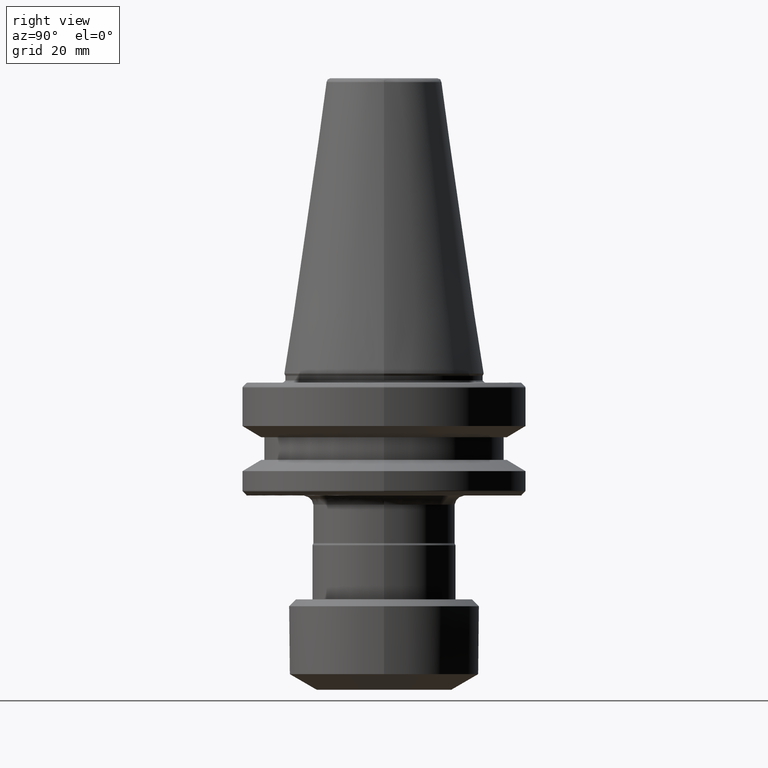
[diagram: clean part render]
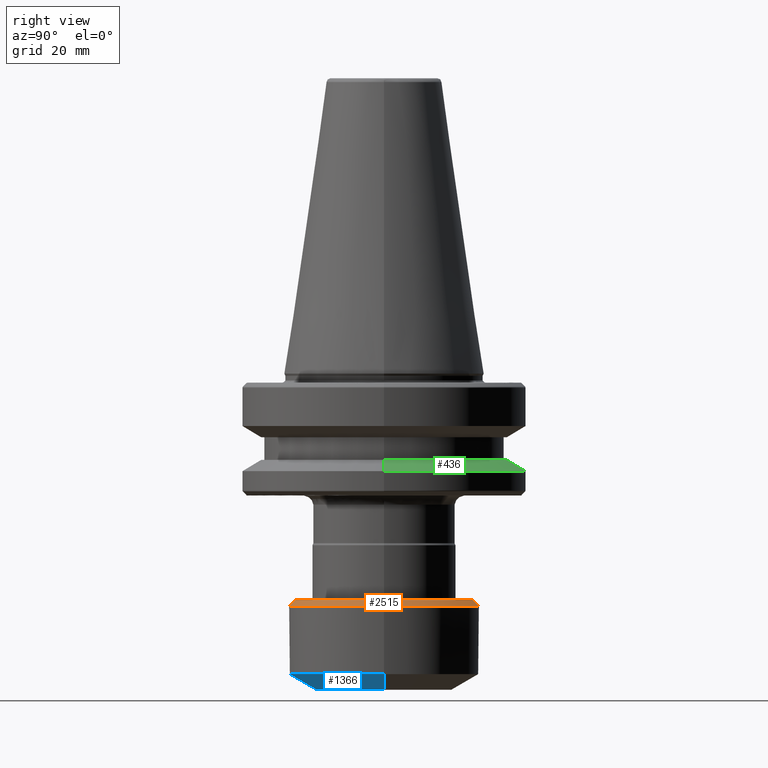
[diagram: same view with three faces highlighted in distinct colors, each labeled with its STEP entity id]
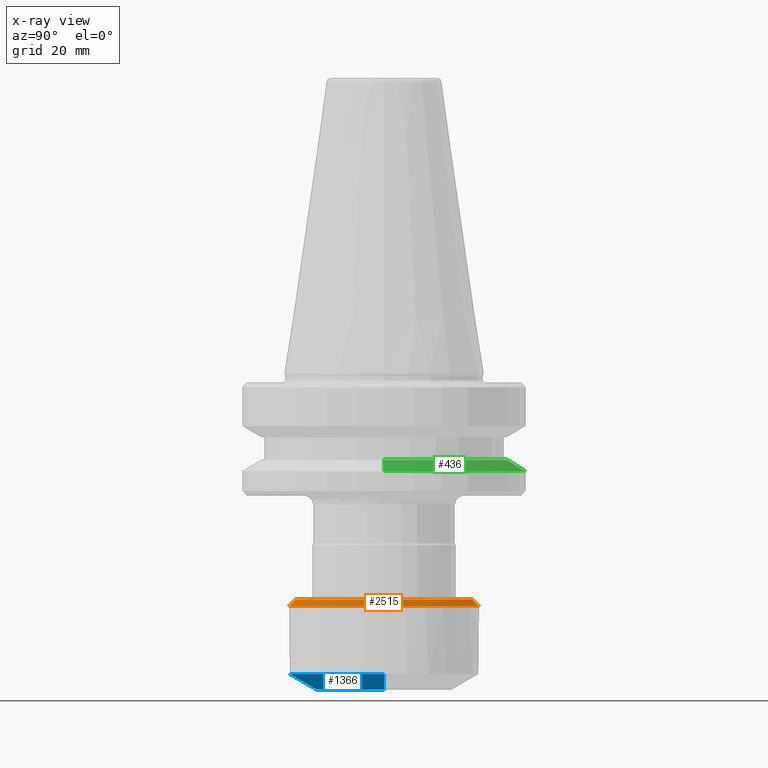
[diagram: x-ray of the same camera — body ghosted, the three highlighted faces saturated]
A machine part, right view with three faces highlighted in distinct colors.
The next image is the same camera in x-ray (body ghosted, the three faces saturated) — at least one of them is partly hidden behind the body in this view.
Their STEP definitions:

[orange] entity #2515 — the highlighted conical surface has half-angle 45 deg.
#16 = CONICAL_SURFACE ( 'NONE', #1142, 19.50000000000000400, 0.7853981633974488300 ) ;
#37 = EDGE_CURVE ( 'NONE', #2685, #1561, #1687, .T. ) ;
#41 = FACE_OUTER_BOUND ( 'NONE', #826, .T. ) ;
#42 = CARTESIAN_POINT ( 'NONE',  ( 61.73341380625030400, 81.23534176582239800, 15.56793828204414100 ) ) ;
#68 = CIRCLE ( 'NONE', #154, 20.99999999999998900 ) ;
#142 = DIRECTION ( 'NONE',  ( 0.0000000000000000000, 0.0000000000000000000, 1.000000000000000000 ) ) ;
#154 = AXIS2_PLACEMENT_3D ( 'NONE', #1507, #142, #1720 ) ;
#171 = CARTESIAN_POINT ( 'NONE',  ( 61.73341380625030400, 81.23534176582239800, 17.06793828204413900 ) ) ;
#197 = DIRECTION ( 'NONE',  ( 0.0000000000000000000, 0.7071067811865479100, -0.7071067811865471300 ) ) ;
#291 = VECTOR ( 'NONE', #197, 1000.000000000000000 ) ;
#296 = LINE ( 'NONE', #1571, #291 ) ;
#334 = LINE ( 'NONE', #1700, #360 ) ;
#350 = AXIS2_PLACEMENT_3D ( 'NONE', #807, #560, #635 ) ;
#358 = DIRECTION ( 'NONE',  ( 8.659560562354937800E-017, -0.7071067811865479100, -0.7071067811865471300 ) ) ;
#360 = VECTOR ( 'NONE', #358, 1000.000000000000000 ) ;
#385 = EDGE_CURVE ( 'NONE', #776, #1526, #698, .T. ) ;
#560 = DIRECTION ( 'NONE',  ( -0.0000000000000000000, 4.448008912761044100E-017, 1.000000000000000000 ) ) ;
#635 = DIRECTION ( 'NONE',  ( 0.0000000000000000000, 1.000000000000000000, 0.0000000000000000000 ) ) ;
#698 = CIRCLE ( 'NONE', #350, 19.49999999999998900 ) ;
#776 = VERTEX_POINT ( 'NONE', #1536 ) ;
#803 = VERTEX_POINT ( 'NONE', #1148 ) ;
#807 = CARTESIAN_POINT ( 'NONE',  ( 61.73341380625030400, 81.23534176582239800, 17.06793828204414600 ) ) ;
#826 = EDGE_LOOP ( 'NONE', ( #2488, #929, #2050, #2421, #1028 ) ) ;
#929 = ORIENTED_EDGE ( 'NONE', *, *, #1764, .T. ) ;
#1028 = ORIENTED_EDGE ( 'NONE', *, *, #1857, .F. ) ;
#1142 = AXIS2_PLACEMENT_3D ( 'NONE', #171, #1542, #2469 ) ;
#1148 = CARTESIAN_POINT ( 'NONE',  ( 61.73341380625030400, 60.23534176582239000, 15.56793828204414100 ) ) ;
#1370 = CARTESIAN_POINT ( 'NONE',  ( 61.73341380625030400, 100.7353417658223800, 17.06793828204414600 ) ) ;
#1507 = CARTESIAN_POINT ( 'NONE',  ( 61.73341380625030400, 81.23534176582239800, 15.56793828204414100 ) ) ;
#1526 = VERTEX_POINT ( 'NONE', #1370 ) ;
#1536 = CARTESIAN_POINT ( 'NONE',  ( 61.73341380625030400, 61.73534176582240500, 17.06793828204414600 ) ) ;
#1542 = DIRECTION ( 'NONE',  ( 0.0000000000000000000, -4.448008912761044100E-017, -1.000000000000000000 ) ) ;
#1561 = VERTEX_POINT ( 'NONE', #1646 ) ;
#1571 = CARTESIAN_POINT ( 'NONE',  ( 61.73341380625030400, 100.7353417658224000, 17.06793828204413900 ) ) ;
#1583 = AXIS2_PLACEMENT_3D ( 'NONE', #42, #2408, #1825 ) ;
#1646 = CARTESIAN_POINT ( 'NONE',  ( 61.73341380625030400, 102.2353417658224000, 15.56793828204414100 ) ) ;
#1687 = CIRCLE ( 'NONE', #1583, 20.99999999999998900 ) ;
#1700 = CARTESIAN_POINT ( 'NONE',  ( 61.73341380625030400, 61.73534176582239000, 17.06793828204413900 ) ) ;
#1720 = DIRECTION ( 'NONE',  ( 1.000000000000000000, 0.0000000000000000000, 0.0000000000000000000 ) ) ;
#1764 = EDGE_CURVE ( 'NONE', #776, #803, #334, .T. ) ;
#1779 = CARTESIAN_POINT ( 'NONE',  ( 82.73341380625031100, 81.23534176582239800, 15.56793828204414100 ) ) ;
#1825 = DIRECTION ( 'NONE',  ( 1.000000000000000000, 0.0000000000000000000, 0.0000000000000000000 ) ) ;
#1857 = EDGE_CURVE ( 'NONE', #1526, #1561, #296, .T. ) ;
#2050 = ORIENTED_EDGE ( 'NONE', *, *, #2491, .T. ) ;
#2408 = DIRECTION ( 'NONE',  ( 0.0000000000000000000, 0.0000000000000000000, 1.000000000000000000 ) ) ;
#2421 = ORIENTED_EDGE ( 'NONE', *, *, #37, .T. ) ;
#2469 = DIRECTION ( 'NONE',  ( 0.0000000000000000000, 1.000000000000000000, 0.0000000000000000000 ) ) ;
#2488 = ORIENTED_EDGE ( 'NONE', *, *, #385, .F. ) ;
#2491 = EDGE_CURVE ( 'NONE', #803, #2685, #68, .T. ) ;
#2515 = ADVANCED_FACE ( 'NONE', ( #41 ), #16, .T. ) ;
#2685 = VERTEX_POINT ( 'NONE', #1779 ) ;

[blue] entity #1366 — the highlighted conical surface has half-angle 60 deg.
#82 = DIRECTION ( 'NONE',  ( 5.782411586589358600E-017, -0.0000000000000000000, -1.000000000000000000 ) ) ;
#120 = VECTOR ( 'NONE', #2267, 1000.000000000000000 ) ;
#152 = LINE ( 'NONE', #859, #120 ) ;
#189 = AXIS2_PLACEMENT_3D ( 'NONE', #531, #82, #2449 ) ;
#286 = CARTESIAN_POINT ( 'NONE',  ( 61.73341380625030400, 81.23534176582239800, -2.932061717955860100 ) ) ;
#331 = EDGE_CURVE ( 'NONE', #2090, #2509, #733, .T. ) ;
#394 = AXIS2_PLACEMENT_3D ( 'NONE', #286, #2690, #2624 ) ;
#447 = CONICAL_SURFACE ( 'NONE', #394, 15.00000000000000000, 1.047197551233155100 ) ;
#450 = FACE_OUTER_BOUND ( 'NONE', #1199, .T. ) ;
#499 = CIRCLE ( 'NONE', #2288, 20.99999999999998900 ) ;
#502 = LINE ( 'NONE', #1380, #513 ) ;
#513 = VECTOR ( 'NONE', #1374, 999.9999999999998900 ) ;
#531 = CARTESIAN_POINT ( 'NONE',  ( 61.73341380625030400, 81.23534176582239800, -2.932061717955869000 ) ) ;
#733 = CIRCLE ( 'NONE', #189, 14.99999999999998600 ) ;
#859 = CARTESIAN_POINT ( 'NONE',  ( 76.73341380625029700, 81.23534176582239800, -2.932061717955859200 ) ) ;
#907 = CARTESIAN_POINT ( 'NONE',  ( 40.73341380598234500, 81.23534176582239800, 0.5320398970441384500 ) ) ;
#1076 = ORIENTED_EDGE ( 'NONE', *, *, #2339, .T. ) ;
#1080 = VERTEX_POINT ( 'NONE', #907 ) ;
#1128 = CARTESIAN_POINT ( 'NONE',  ( 46.73341380625031900, 81.23534176582239800, -2.932061717955869900 ) ) ;
#1175 = EDGE_CURVE ( 'NONE', #2503, #1080, #499, .T. ) ;
#1180 = EDGE_CURVE ( 'NONE', #2509, #1080, #502, .T. ) ;
#1199 = EDGE_LOOP ( 'NONE', ( #1375, #2192, #1076, #1566 ) ) ;
#1348 = DIRECTION ( 'NONE',  ( 1.000000000000000000, 0.0000000000000000000, 0.0000000000000000000 ) ) ;
#1360 = DIRECTION ( 'NONE',  ( -0.0000000000000000000, -0.0000000000000000000, -1.000000000000000000 ) ) ;
#1366 = ADVANCED_FACE ( 'NONE', ( #450 ), #447, .T. ) ;
#1373 = CARTESIAN_POINT ( 'NONE',  ( 61.73341380625030400, 81.23534176582239800, 0.5320398970441384500 ) ) ;
#1374 = DIRECTION ( 'NONE',  ( -0.8660254038027174200, 1.060575238747292000E-016, 0.4999999999683404400 ) ) ;
#1375 = ORIENTED_EDGE ( 'NONE', *, *, #1180, .F. ) ;
#1380 = CARTESIAN_POINT ( 'NONE',  ( 46.73341380625030400, 81.23534176582239800, -2.932061717955861000 ) ) ;
#1499 = CARTESIAN_POINT ( 'NONE',  ( 82.73341380651824300, 81.23534176582239800, 0.5320398970441384500 ) ) ;
#1566 = ORIENTED_EDGE ( 'NONE', *, *, #1175, .T. ) ;
#2090 = VERTEX_POINT ( 'NONE', #2233 ) ;
#2192 = ORIENTED_EDGE ( 'NONE', *, *, #331, .F. ) ;
#2233 = CARTESIAN_POINT ( 'NONE',  ( 76.73341380625028300, 81.23534176582239800, -2.932061717955868100 ) ) ;
#2267 = DIRECTION ( 'NONE',  ( 0.8660254038027173100, 0.0000000000000000000, 0.4999999999683404900 ) ) ;
#2288 = AXIS2_PLACEMENT_3D ( 'NONE', #1373, #1360, #1348 ) ;
#2339 = EDGE_CURVE ( 'NONE', #2090, #2503, #152, .T. ) ;
#2449 = DIRECTION ( 'NONE',  ( 1.000000000000000000, 0.0000000000000000000, 5.782411586589362300E-017 ) ) ;
#2503 = VERTEX_POINT ( 'NONE', #1499 ) ;
#2509 = VERTEX_POINT ( 'NONE', #1128 ) ;
#2624 = DIRECTION ( 'NONE',  ( 1.000000000000000000, 0.0000000000000000000, 5.782411586589357400E-017 ) ) ;
#2690 = DIRECTION ( 'NONE',  ( -5.782411586589358600E-017, 0.0000000000000000000, 1.000000000000000000 ) ) ;

[green] entity #436 — the highlighted conical surface has half-angle 60 deg.
#159 = CIRCLE ( 'NONE', #717, 31.50000000000000000 ) ;
#205 = CIRCLE ( 'NONE', #1772, 27.18372996999940500 ) ;
#436 = ADVANCED_FACE ( 'NONE', ( #666 ), #654, .T. ) ;
#459 = DIRECTION ( 'NONE',  ( -0.0000000000000000000, -0.0000000000000000000, 1.000000000000000000 ) ) ;
#471 = VECTOR ( 'NONE', #1839, 1000.000000000000000 ) ;
#520 = AXIS2_PLACEMENT_3D ( 'NONE', #1833, #2209, #1653 ) ;
#524 = LINE ( 'NONE', #1649, #471 ) ;
#571 = VECTOR ( 'NONE', #1342, 1000.000000000000000 ) ;
#588 = LINE ( 'NONE', #1321, #571 ) ;
#654 = CONICAL_SURFACE ( 'NONE', #520, 27.18372996999940500, 1.047197551196599000 ) ;
#666 = FACE_OUTER_BOUND ( 'NONE', #1085, .T. ) ;
#717 = AXIS2_PLACEMENT_3D ( 'NONE', #1783, #459, #1969 ) ;
#862 = EDGE_CURVE ( 'NONE', #2379, #1296, #588, .T. ) ;
#931 = CARTESIAN_POINT ( 'NONE',  ( 30.23341380625030400, 81.23534176582239800, 45.47593861832814400 ) ) ;
#1039 = ORIENTED_EDGE ( 'NONE', *, *, #2287, .T. ) ;
#1085 = EDGE_LOOP ( 'NONE', ( #1832, #2242, #1039, #1719 ) ) ;
#1158 = CARTESIAN_POINT ( 'NONE',  ( 93.23341380625029700, 81.23534176582239800, 45.47593861832814400 ) ) ;
#1296 = VERTEX_POINT ( 'NONE', #1158 ) ;
#1299 = CARTESIAN_POINT ( 'NONE',  ( 61.73341380625030400, 81.23534176582239800, 47.96793828204409500 ) ) ;
#1321 = CARTESIAN_POINT ( 'NONE',  ( 88.91714377624970200, 81.23534176582239800, 47.96793828204409500 ) ) ;
#1323 = EDGE_CURVE ( 'NONE', #2164, #2472, #524, .T. ) ;
#1342 = DIRECTION ( 'NONE',  ( 0.8660254037844392600, 1.060575238724907700E-016, -0.4999999999999989500 ) ) ;
#1477 = DIRECTION ( 'NONE',  ( 1.000000000000000000, 0.0000000000000000000, 0.0000000000000000000 ) ) ;
#1649 = CARTESIAN_POINT ( 'NONE',  ( 34.54968383625090000, 81.23534176582239800, 47.96793828204409500 ) ) ;
#1653 = DIRECTION ( 'NONE',  ( -1.000000000000000000, 0.0000000000000000000, 0.0000000000000000000 ) ) ;
#1713 = CARTESIAN_POINT ( 'NONE',  ( 34.54968383625090000, 81.23534176582239800, 47.96793828204409500 ) ) ;
#1719 = ORIENTED_EDGE ( 'NONE', *, *, #1323, .F. ) ;
#1772 = AXIS2_PLACEMENT_3D ( 'NONE', #1299, #2608, #1477 ) ;
#1783 = CARTESIAN_POINT ( 'NONE',  ( 61.73341380625030400, 81.23534176582239800, 45.47593861832814400 ) ) ;
#1832 = ORIENTED_EDGE ( 'NONE', *, *, #2124, .F. ) ;
#1833 = CARTESIAN_POINT ( 'NONE',  ( 61.73341380625030400, 81.23534176582239800, 47.96793828204409500 ) ) ;
#1839 = DIRECTION ( 'NONE',  ( -0.8660254037844392600, 0.0000000000000000000, -0.4999999999999989500 ) ) ;
#1895 = CARTESIAN_POINT ( 'NONE',  ( 88.91714377624970200, 81.23534176582239800, 47.96793828204409500 ) ) ;
#1969 = DIRECTION ( 'NONE',  ( 1.000000000000000000, 0.0000000000000000000, 0.0000000000000000000 ) ) ;
#2124 = EDGE_CURVE ( 'NONE', #2379, #2164, #205, .T. ) ;
#2164 = VERTEX_POINT ( 'NONE', #1713 ) ;
#2209 = DIRECTION ( 'NONE',  ( 0.0000000000000000000, 0.0000000000000000000, -1.000000000000000000 ) ) ;
#2242 = ORIENTED_EDGE ( 'NONE', *, *, #862, .T. ) ;
#2287 = EDGE_CURVE ( 'NONE', #1296, #2472, #159, .T. ) ;
#2379 = VERTEX_POINT ( 'NONE', #1895 ) ;
#2472 = VERTEX_POINT ( 'NONE', #931 ) ;
#2608 = DIRECTION ( 'NONE',  ( -0.0000000000000000000, -0.0000000000000000000, 1.000000000000000000 ) ) ;